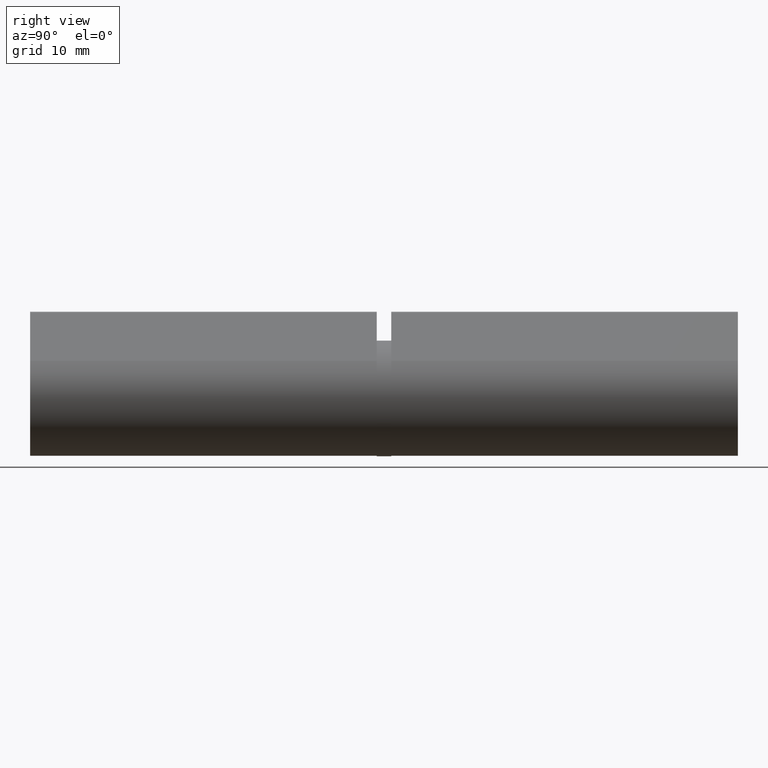
[diagram: clean part render]
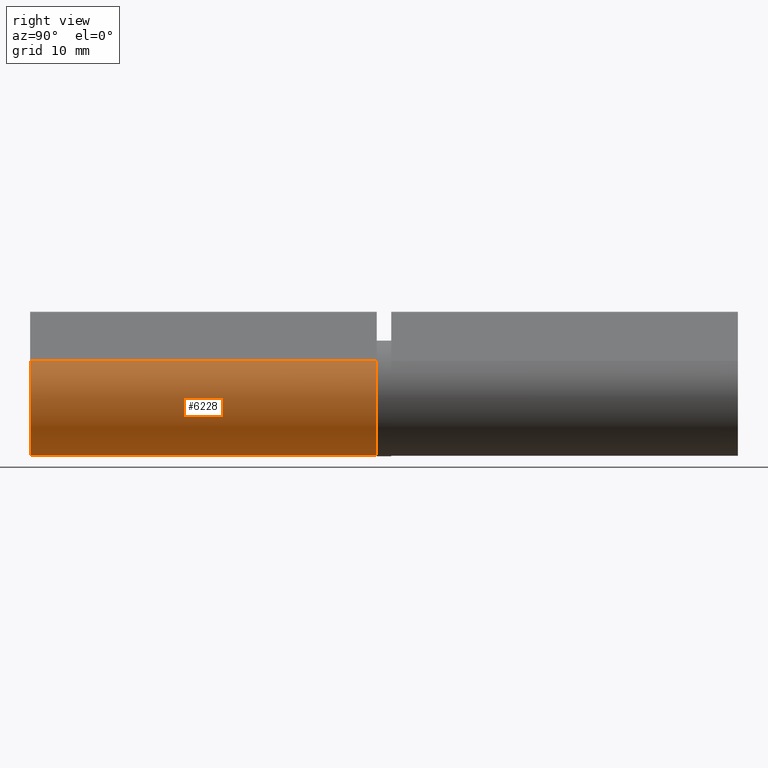
[diagram: same view with one face highlighted and labeled with its STEP entity id]
A machine part, right view. The second image highlights one B-rep face of the part: STEP entity #6228.
In plain terms, the highlighted cylindrical surface (partial cylindrical patch) has radius 8 mm, axis along (-0, -1, -0).
Its self-contained STEP definition (entity closure, byte-faithful):
#346 = LINE ( 'NONE', #1750, #8866 ) ;
#410 = VERTEX_POINT ( 'NONE', #12103 ) ;
#635 = CARTESIAN_POINT ( 'NONE',  ( 0.000000000000000000, -24.00000000000000000, 0.000000000000000000 ) ) ;
#1750 = CARTESIAN_POINT ( 'NONE',  ( -6.064555051882675407, 24.00000000000000000, 5.217391304347825276 ) ) ;
#1770 = ORIENTED_EDGE ( 'NONE', *, *, #2011, .T. ) ;
#2011 = EDGE_CURVE ( 'NONE', #12757, #410, #3415, .T. ) ;
#2422 = EDGE_CURVE ( 'NONE', #5911, #3509, #346, .T. ) ;
#2429 = EDGE_CURVE ( 'NONE', #12757, #5911, #8533, .T. ) ;
#2913 = EDGE_LOOP ( 'NONE', ( #6690, #10988, #8434, #1770 ) ) ;
#3415 = LINE ( 'NONE', #9839, #12093 ) ;
#3509 = VERTEX_POINT ( 'NONE', #9351 ) ;
#3650 = CARTESIAN_POINT ( 'NONE',  ( 0.000000000000000000, 24.00000000000000000, 0.000000000000000000 ) ) ;
#4777 = DIRECTION ( 'NONE',  ( -0.000000000000000000, -1.000000000000000000, -0.000000000000000000 ) ) ;
#5342 = FACE_OUTER_BOUND ( 'NONE', #2913, .T. ) ;
#5806 = AXIS2_PLACEMENT_3D ( 'NONE', #635, #11775, #8889 ) ;
#5911 = VERTEX_POINT ( 'NONE', #7926 ) ;
#6228 = ADVANCED_FACE ( 'NONE', ( #5342 ), #10309, .T. ) ;
#6690 = ORIENTED_EDGE ( 'NONE', *, *, #7746, .T. ) ;
#7746 = EDGE_CURVE ( 'NONE', #410, #3509, #9608, .T. ) ;
#7926 = CARTESIAN_POINT ( 'NONE',  ( -6.064555051882675407, 24.00000000000000000, 5.217391304347825276 ) ) ;
#8171 = DIRECTION ( 'NONE',  ( -0.000000000000000000, -1.000000000000000000, -0.000000000000000000 ) ) ;
#8434 = ORIENTED_EDGE ( 'NONE', *, *, #2429, .F. ) ;
#8533 = CIRCLE ( 'NONE', #8869, 7.999999999999998224 ) ;
#8666 = DIRECTION ( 'NONE',  ( -0.000000000000000000, -1.000000000000000000, -0.000000000000000000 ) ) ;
#8866 = VECTOR ( 'NONE', #4777, 1000.000000000000000 ) ;
#8869 = AXIS2_PLACEMENT_3D ( 'NONE', #12054, #11153, #13057 ) ;
#8889 = DIRECTION ( 'NONE',  ( 0.000000000000000000, 0.000000000000000000, 1.000000000000000000 ) ) ;
#9351 = CARTESIAN_POINT ( 'NONE',  ( -6.064555051882675407, -24.00000000000000000, 5.217391304347825276 ) ) ;
#9608 = CIRCLE ( 'NONE', #5806, 7.999999999999998224 ) ;
#9839 = CARTESIAN_POINT ( 'NONE',  ( 6.064555051882675407, 24.00000000000000000, 5.217391304347825276 ) ) ;
#10309 = CYLINDRICAL_SURFACE ( 'NONE', #12609, 7.999999999999998224 ) ;
#10988 = ORIENTED_EDGE ( 'NONE', *, *, #2422, .F. ) ;
#11153 = DIRECTION ( 'NONE',  ( 0.000000000000000000, 1.000000000000000000, 0.000000000000000000 ) ) ;
#11378 = CARTESIAN_POINT ( 'NONE',  ( 6.064555051882675407, 24.00000000000000000, 5.217391304347825276 ) ) ;
#11775 = DIRECTION ( 'NONE',  ( 0.000000000000000000, 1.000000000000000000, 0.000000000000000000 ) ) ;
#11831 = DIRECTION ( 'NONE',  ( 0.000000000000000000, 0.000000000000000000, -1.000000000000000000 ) ) ;
#12054 = CARTESIAN_POINT ( 'NONE',  ( 0.000000000000000000, 24.00000000000000000, 0.000000000000000000 ) ) ;
#12093 = VECTOR ( 'NONE', #8171, 1000.000000000000000 ) ;
#12103 = CARTESIAN_POINT ( 'NONE',  ( 6.064555051882675407, -24.00000000000000000, 5.217391304347825276 ) ) ;
#12609 = AXIS2_PLACEMENT_3D ( 'NONE', #3650, #8666, #11831 ) ;
#12757 = VERTEX_POINT ( 'NONE', #11378 ) ;
#13057 = DIRECTION ( 'NONE',  ( 0.000000000000000000, 0.000000000000000000, 1.000000000000000000 ) ) ;